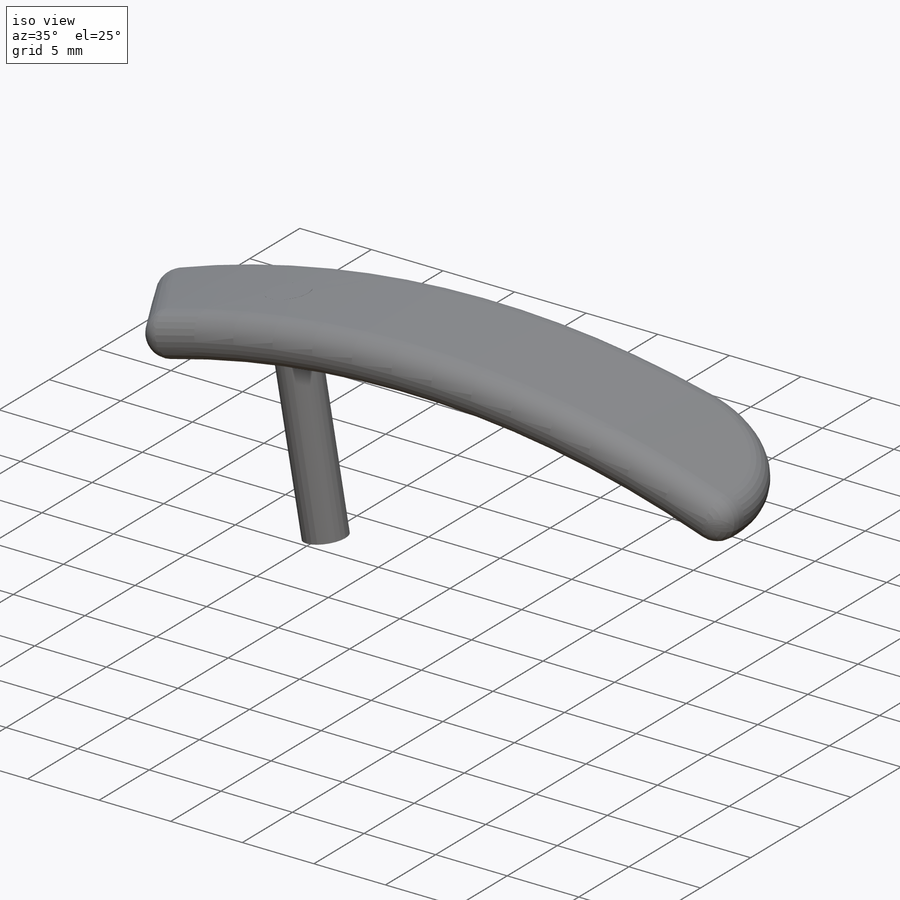
[diagram: iso view]
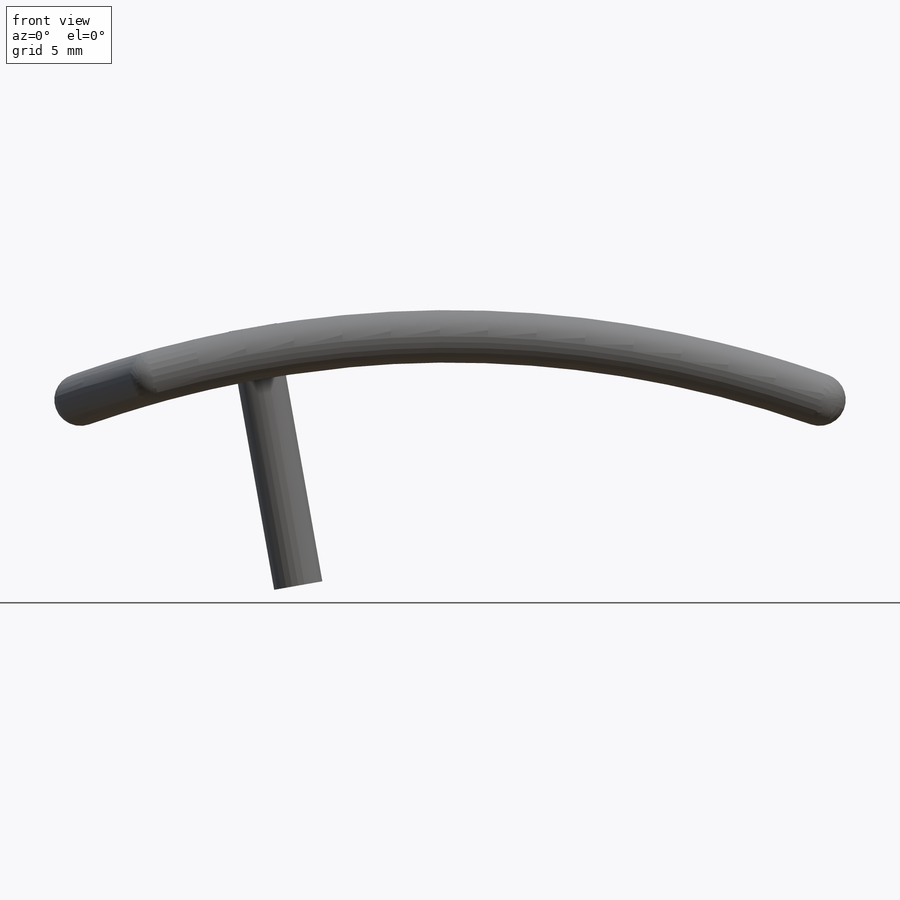
[diagram: front view]
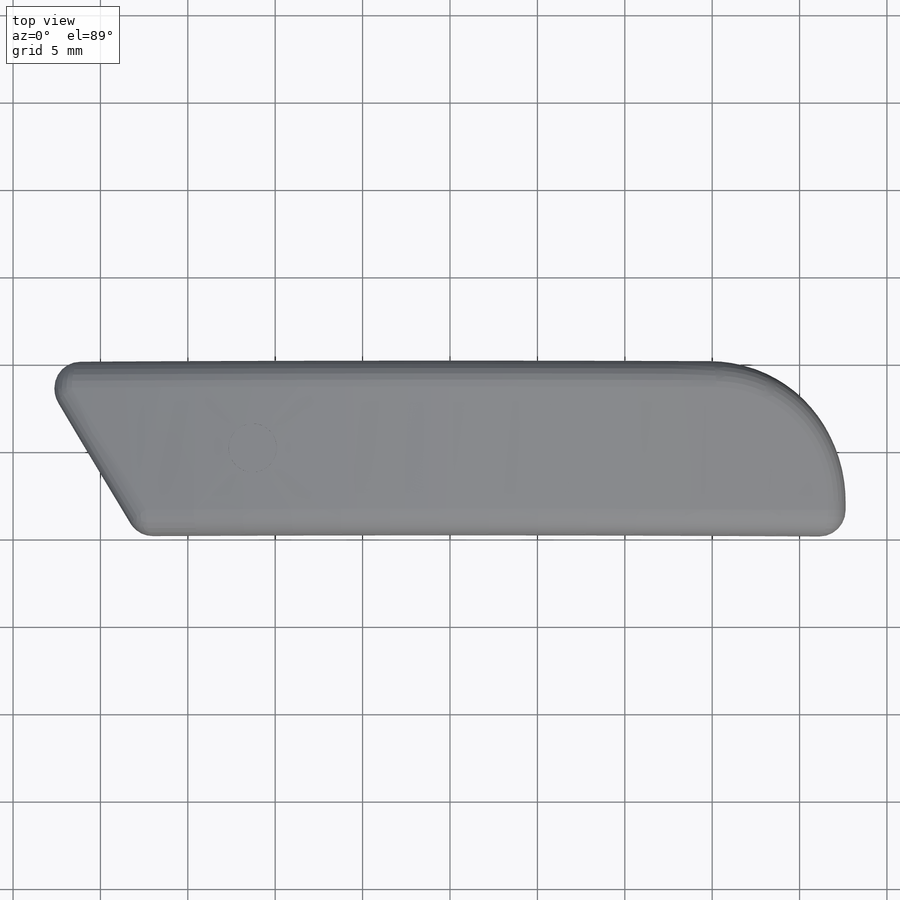
[diagram: top view]
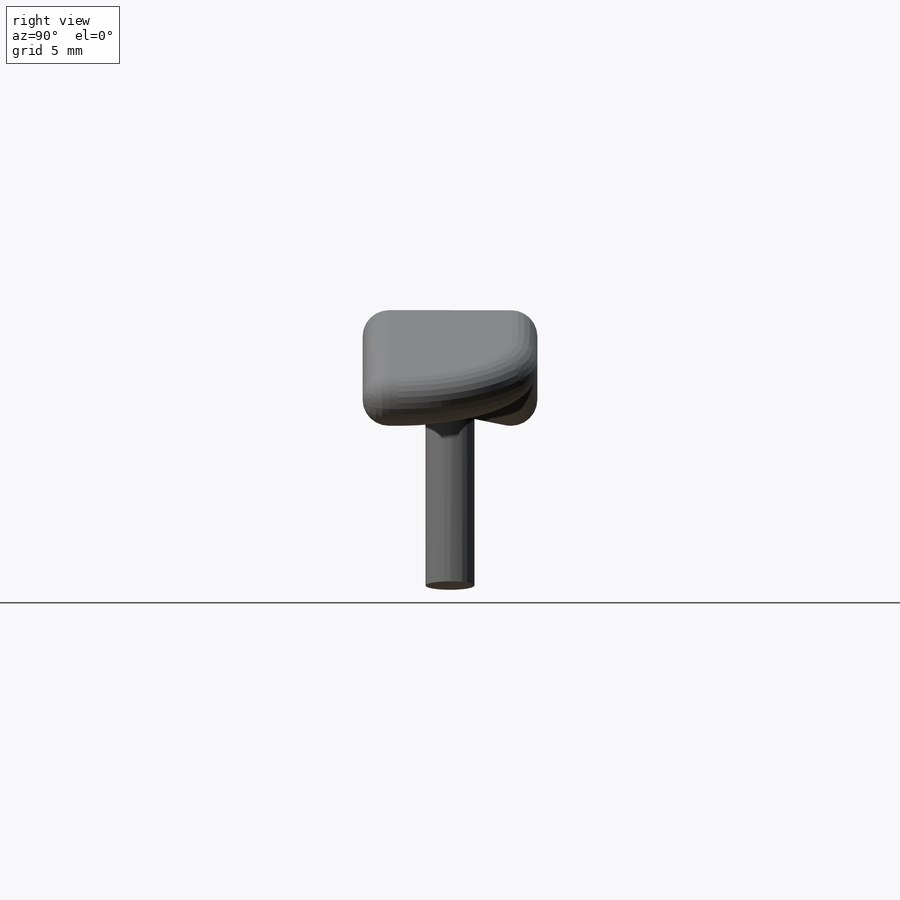
[diagram: right view]
SOLIDWORKS PART (.sldprt)
format: sldprt  version: not decoded by parser v0  size: 239,104 bytes
history: native  units: mm
features: sketch x4, plane x3, extrude x2, fillet x2, chamfer x2, material x1 (+12 scaffold rows collapsed)
feature tree (26):
  scaffold x12  (default folders/planes/origin — collapsed)
  material  "Material <not specified>"
  sketch  "Sketch4"  dims[c1.D1=~62.10081mm c2.D1=20.8deg c2.D2=~86.02882mm c3.D2=20.8deg]
  extrude  "Boss-Extrude1"  Depth=10mm
  fillet  "Fillet2"  Radius=8mm
  chamfer  "Chamfer1"  Distance=8mm Angle=32deg
  fillet  "Fillet3"  Radius=1.5mm
  plane  "Plane1"
  sketch  "Sketch5"  dims[D1=~4.998666mm]
  plane  "Plane2"
  sketch  "Sketch6"  dims[D1=3.5mm]
  extrude  "Boss-Extrude4"  Depth=15mm
  chamfer  "Axis3"  [1 undecoded]
  plane  "Plane3"
  sketch  "Sketch7"  dims[D1=57.5mm]
decode coverage: 9 of 10 modeling features carry decoded parameters
note: ~ marks probable driven/reference dimensions
note: 1 parameter value undecoded
note: suppression state not decoded; provenance and decode notes live in map.json
